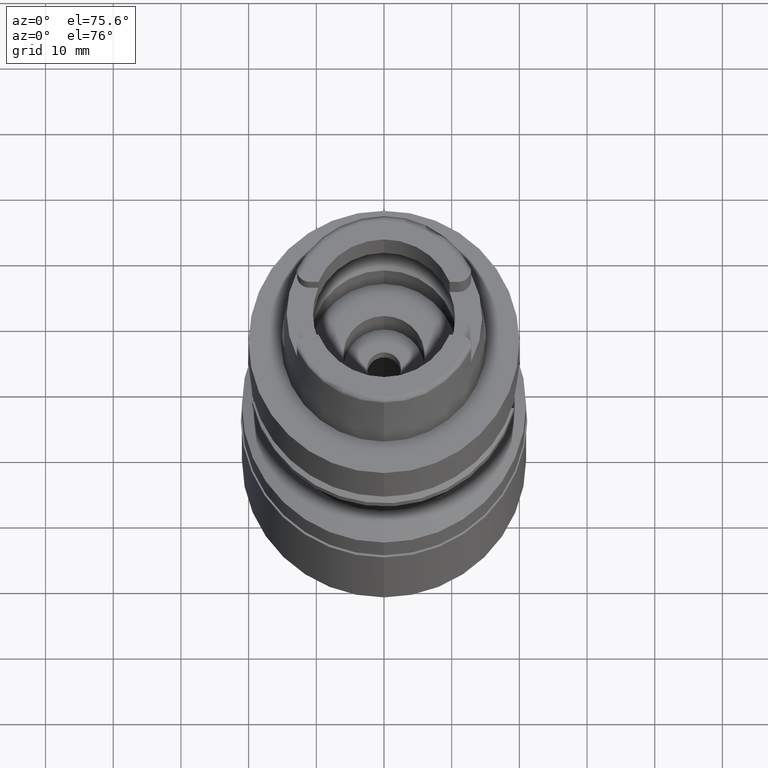
[diagram: clean part render]
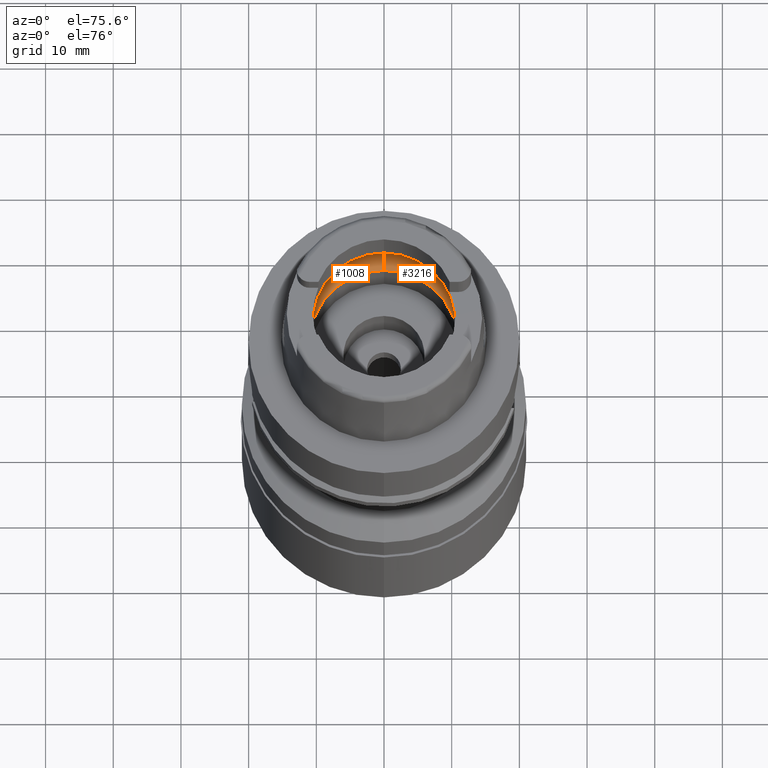
[diagram: same view with one multi-face feature highlighted, each face labeled with its STEP entity id]
A machine part, auxiliary view. The highlighted faces form ONE feature: a constant-radius fillet chain: 2 tangent blend faces with common blend radius 5 mm. The faces share edges in the B-rep.
Their STEP definitions:
[1] entity #1008 (Torus):
#28 = VERTEX_POINT ( 'NONE', #724 ) ;
#136 = CARTESIAN_POINT ( 'NONE',  ( -12.73125791500999959, 0.6899488223915999363, 3.796703560592000315 ) ) ;
#278 = EDGE_CURVE ( 'NONE', #4067, #2841, #2353, .T. ) ;
#290 = EDGE_CURVE ( 'NONE', #4269, #4067, #649, .T. ) ;
#456 = EDGE_CURVE ( 'NONE', #4269, #838, #3293, .T. ) ;
#649 = CIRCLE ( 'NONE', #2503, 10.90000000000000036 ) ;
#653 = CARTESIAN_POINT ( 'NONE',  ( -12.71822638592999866, 0.9055701133754999743, 3.882623362512000131 ) ) ;
#724 = CARTESIAN_POINT ( 'NONE',  ( -12.70998420979999999, -1.009356917307999923, 3.933312163512999504 ) ) ;
#729 = CARTESIAN_POINT ( 'NONE',  ( -12.74455357708000136, -0.3736595957190507744, 3.699999999999999289 ) ) ;
#815 = CIRCLE ( 'NONE', #5384, 12.75000000000000000 ) ;
#838 = VERTEX_POINT ( 'NONE', #1647 ) ;
#894 = DIRECTION ( 'NONE',  ( 1.000000000000000000, 0.0000000000000000000, 0.0000000000000000000 ) ) ;
#1008 = ADVANCED_FACE ( 'NONE', ( #4313 ), #3661, .F. ) ;
#1016 = DIRECTION ( 'NONE',  ( 0.0000000000000000000, 0.0000000000000000000, -1.000000000000000000 ) ) ;
#1234 = ORIENTED_EDGE ( 'NONE', *, *, #3013, .F. ) ;
#1385 = CARTESIAN_POINT ( 'NONE',  ( 0.0000000000000000000, 1.272815980657999902E-14, 3.933312163512999504 ) ) ;
#1387 = CARTESIAN_POINT ( 'NONE',  ( 0.0000000000000000000, 1.272815980657999902E-14, 3.933312163512999504 ) ) ;
#1437 = CARTESIAN_POINT ( 'NONE',  ( -12.74455357708000136, 0.0000000000000000000, 3.700000000000000178 ) ) ;
#1569 = CARTESIAN_POINT ( 'NONE',  ( 0.0000000000000000000, -12.75000000000000000, 3.933312163512999504 ) ) ;
#1647 = CARTESIAN_POINT ( 'NONE',  ( 0.0000000000000000000, 12.75000000000000000, 3.933312163512999504 ) ) ;
#1674 = ORIENTED_EDGE ( 'NONE', *, *, #3110, .F. ) ;
#1709 = AXIS2_PLACEMENT_3D ( 'NONE', #3446, #894, #2289 ) ;
#1805 = B_SPLINE_CURVE_WITH_KNOTS ( 'NONE', 3,
 ( #1437, #3922, #2272, #136, #653, #4003 ),
 .UNSPECIFIED., .F., .F.,
 ( 4, 1, 1, 4 ),
 ( 0.0000000000000000000, 0.3333333333333000081, 0.6666666666667000474, 1.000000000000000000 ),
 .UNSPECIFIED. ) ;
#1872 = DIRECTION ( 'NONE',  ( 0.0000000000000000000, 0.0000000000000000000, 1.000000000000000000 ) ) ;
#2093 = VERTEX_POINT ( 'NONE', #2671 ) ;
#2230 = DIRECTION ( 'NONE',  ( 0.0000000000000000000, 1.000000000000000000, 0.0000000000000000000 ) ) ;
#2246 = DIRECTION ( 'NONE',  ( 0.0000000000000000000, -1.000000000000000000, 0.0000000000000000000 ) ) ;
#2272 = CARTESIAN_POINT ( 'NONE',  ( -12.74221287095999955, 0.3492175661402999731, 3.717717495173999964 ) ) ;
#2289 = DIRECTION ( 'NONE',  ( 0.0000000000000000000, 0.6299999999999791322, -0.7765951326141738997 ) ) ;
#2294 = AXIS2_PLACEMENT_3D ( 'NONE', #3517, #1016, #4855 ) ;
#2353 = CIRCLE ( 'NONE', #5383, 5.000000000000000888 ) ;
#2423 = ORIENTED_EDGE ( 'NONE', *, *, #3039, .F. ) ;
#2503 = AXIS2_PLACEMENT_3D ( 'NONE', #3461, #1872, #2230 ) ;
#2521 = AXIS2_PLACEMENT_3D ( 'NONE', #1387, #4286, #4716 ) ;
#2671 = CARTESIAN_POINT ( 'NONE',  ( -12.70998420979999999, 1.009356917307999923, 3.933312163512999504 ) ) ;
#2841 = VERTEX_POINT ( 'NONE', #1569 ) ;
#2928 = EDGE_LOOP ( 'NONE', ( #1234, #4488, #3777, #4786, #4508, #2423, #1674 ) ) ;
#3013 = EDGE_CURVE ( 'NONE', #2841, #28, #815, .T. ) ;
#3039 = EDGE_CURVE ( 'NONE', #3522, #2093, #1805, .T. ) ;
#3110 = EDGE_CURVE ( 'NONE', #28, #3522, #4103, .T. ) ;
#3293 = CIRCLE ( 'NONE', #1709, 5.000000000000000888 ) ;
#3446 = CARTESIAN_POINT ( 'NONE',  ( 0.0000000000000000000, 7.750000000000000000, 3.933312163512999504 ) ) ;
#3461 = CARTESIAN_POINT ( 'NONE',  ( 0.0000000000000000000, 1.272815980657999902E-14, 0.05033650044221000402 ) ) ;
#3517 = CARTESIAN_POINT ( 'NONE',  ( 0.0000000000000000000, 1.272815980657999902E-14, 3.933312163512999504 ) ) ;
#3522 = VERTEX_POINT ( 'NONE', #3585 ) ;
#3585 = CARTESIAN_POINT ( 'NONE',  ( -12.74455357708000136, 0.0000000000000000000, 3.700000000000000178 ) ) ;
#3661 = TOROIDAL_SURFACE ( 'NONE', #2521, 7.750000000000000000, 5.000000000000000000 ) ;
#3689 = CARTESIAN_POINT ( 'NONE',  ( -12.73303045465333305, -0.7191549055692795234, 3.791579385686877579 ) ) ;
#3777 = ORIENTED_EDGE ( 'NONE', *, *, #290, .F. ) ;
#3907 = CARTESIAN_POINT ( 'NONE',  ( 0.0000000000000000000, -7.750000000000000000, 3.933312163512999504 ) ) ;
#3922 = CARTESIAN_POINT ( 'NONE',  ( -12.74455357708000136, 0.1164895558040000140, 3.700000000000000178 ) ) ;
#4003 = CARTESIAN_POINT ( 'NONE',  ( -12.70998420979999999, 1.009356917307999923, 3.933312163512999504 ) ) ;
#4059 = CARTESIAN_POINT ( 'NONE',  ( -12.70998420979999999, -1.009356917307999923, 3.933312163512999504 ) ) ;
#4067 = VERTEX_POINT ( 'NONE', #4587 ) ;
#4103 = B_SPLINE_CURVE_WITH_KNOTS ( 'NONE', 3,
 ( #4059, #3689, #729, #4492 ),
 .UNSPECIFIED., .F., .F.,
 ( 4, 4 ),
 ( 0.0000000000000000000, 1.000000000000000000 ),
 .UNSPECIFIED. ) ;
#4269 = VERTEX_POINT ( 'NONE', #4549 ) ;
#4286 = DIRECTION ( 'NONE',  ( 0.0000000000000000000, 0.0000000000000000000, -1.000000000000000000 ) ) ;
#4312 = CIRCLE ( 'NONE', #2294, 12.75000000000000533 ) ;
#4313 = FACE_OUTER_BOUND ( 'NONE', #2928, .T. ) ;
#4488 = ORIENTED_EDGE ( 'NONE', *, *, #278, .F. ) ;
#4492 = CARTESIAN_POINT ( 'NONE',  ( -12.74455357708000136, 0.0000000000000000000, 3.700000000000000178 ) ) ;
#4508 = ORIENTED_EDGE ( 'NONE', *, *, #5223, .F. ) ;
#4549 = CARTESIAN_POINT ( 'NONE',  ( 0.0000000000000000000, 10.90000000000000036, 0.05033650044221000402 ) ) ;
#4587 = CARTESIAN_POINT ( 'NONE',  ( 0.0000000000000000000, -10.90000000000000036, 0.05033650044221000402 ) ) ;
#4695 = DIRECTION ( 'NONE',  ( -1.000000000000000000, 0.0000000000000000000, 0.0000000000000000000 ) ) ;
#4716 = DIRECTION ( 'NONE',  ( 0.0000000000000000000, -1.000000000000000000, 0.0000000000000000000 ) ) ;
#4742 = DIRECTION ( 'NONE',  ( 0.0000000000000000000, 0.0000000000000000000, -1.000000000000000000 ) ) ;
#4786 = ORIENTED_EDGE ( 'NONE', *, *, #456, .T. ) ;
#4855 = DIRECTION ( 'NONE',  ( -0.9968615066513395462, 0.07916524841634305087, 0.0000000000000000000 ) ) ;
#5191 = DIRECTION ( 'NONE',  ( 0.0000000000000000000, -0.6299999999999791322, -0.7765951326141738997 ) ) ;
#5223 = EDGE_CURVE ( 'NONE', #2093, #838, #4312, .T. ) ;
#5383 = AXIS2_PLACEMENT_3D ( 'NONE', #3907, #4695, #5191 ) ;
#5384 = AXIS2_PLACEMENT_3D ( 'NONE', #1385, #4742, #2246 ) ;
[2] entity #3216 (Torus):
#48 = B_SPLINE_CURVE_WITH_KNOTS ( 'NONE', 3,
 ( #2661, #2202, #3496, #3878, #1900, #4807 ),
 .UNSPECIFIED., .F., .F.,
 ( 4, 1, 1, 4 ),
 ( 0.0000000000000000000, 0.3333333333333000081, 0.6666666666667000474, 1.000000000000000000 ),
 .UNSPECIFIED. ) ;
#94 = DIRECTION ( 'NONE',  ( 0.9968615066513395462, -0.07916524841634305087, 0.0000000000000000000 ) ) ;
#247 = EDGE_CURVE ( 'NONE', #2381, #4699, #48, .T. ) ;
#278 = EDGE_CURVE ( 'NONE', #4067, #2841, #2353, .T. ) ;
#423 = CARTESIAN_POINT ( 'NONE',  ( 12.73125805479999961, -0.6899454939058999869, 3.796702574238000505 ) ) ;
#456 = EDGE_CURVE ( 'NONE', #4269, #838, #3293, .T. ) ;
#472 = EDGE_CURVE ( 'NONE', #4699, #3006, #1310, .T. ) ;
#838 = VERTEX_POINT ( 'NONE', #1647 ) ;
#839 = CARTESIAN_POINT ( 'NONE',  ( 12.74455357708000136, 0.0000000000000000000, 3.700000000000000178 ) ) ;
#883 = ORIENTED_EDGE ( 'NONE', *, *, #278, .T. ) ;
#894 = DIRECTION ( 'NONE',  ( 1.000000000000000000, 0.0000000000000000000, 0.0000000000000000000 ) ) ;
#926 = CARTESIAN_POINT ( 'NONE',  ( 0.0000000000000000000, 1.272815980657999902E-14, 3.933312163512999504 ) ) ;
#1002 = AXIS2_PLACEMENT_3D ( 'NONE', #926, #2582, #3351 ) ;
#1073 = CARTESIAN_POINT ( 'NONE',  ( 12.74455357708000136, 0.0000000000000000000, 3.700000000000000178 ) ) ;
#1148 = CARTESIAN_POINT ( 'NONE',  ( 0.0000000000000000000, 1.272815980657999902E-14, 3.933312163512999504 ) ) ;
#1226 = DIRECTION ( 'NONE',  ( 0.0000000000000000000, 0.0000000000000000000, -1.000000000000000000 ) ) ;
#1304 = EDGE_CURVE ( 'NONE', #838, #2381, #3586, .T. ) ;
#1310 = B_SPLINE_CURVE_WITH_KNOTS ( 'NONE', 3,
 ( #839, #2529, #5111, #423, #3826, #1733 ),
 .UNSPECIFIED., .F., .F.,
 ( 4, 1, 1, 4 ),
 ( 0.0000000000000000000, 0.3333333333333000081, 0.6666666666667000474, 1.000000000000000000 ),
 .UNSPECIFIED. ) ;
#1335 = CARTESIAN_POINT ( 'NONE',  ( 12.70998420979999999, 1.009356917307000057, 3.933312163512999504 ) ) ;
#1569 = CARTESIAN_POINT ( 'NONE',  ( 0.0000000000000000000, -12.75000000000000000, 3.933312163512999504 ) ) ;
#1647 = CARTESIAN_POINT ( 'NONE',  ( 0.0000000000000000000, 12.75000000000000000, 3.933312163512999504 ) ) ;
#1709 = AXIS2_PLACEMENT_3D ( 'NONE', #3446, #894, #2289 ) ;
#1733 = CARTESIAN_POINT ( 'NONE',  ( 12.70998420979999999, -1.009356917307999923, 3.933312163512999504 ) ) ;
#1804 = EDGE_CURVE ( 'NONE', #3006, #2841, #3402, .T. ) ;
#1900 = CARTESIAN_POINT ( 'NONE',  ( 12.74455357708000136, 0.1164891689111999945, 3.700000000000000178 ) ) ;
#1966 = AXIS2_PLACEMENT_3D ( 'NONE', #2964, #3886, #94 ) ;
#2090 = FACE_OUTER_BOUND ( 'NONE', #5004, .T. ) ;
#2202 = CARTESIAN_POINT ( 'NONE',  ( 12.71822643253000074, 0.9055695265645999914, 3.882623075918000044 ) ) ;
#2260 = ORIENTED_EDGE ( 'NONE', *, *, #2975, .F. ) ;
#2271 = AXIS2_PLACEMENT_3D ( 'NONE', #1148, #1226, #4563 ) ;
#2289 = DIRECTION ( 'NONE',  ( 0.0000000000000000000, 0.6299999999999791322, -0.7765951326141738997 ) ) ;
#2353 = CIRCLE ( 'NONE', #5383, 5.000000000000000888 ) ;
#2381 = VERTEX_POINT ( 'NONE', #1335 ) ;
#2529 = CARTESIAN_POINT ( 'NONE',  ( 12.74455357708000136, -0.1164895137048999885, 3.700000000000000178 ) ) ;
#2582 = DIRECTION ( 'NONE',  ( 0.0000000000000000000, 0.0000000000000000000, -1.000000000000000000 ) ) ;
#2661 = CARTESIAN_POINT ( 'NONE',  ( 12.70998420979999999, 1.009356917307000057, 3.933312163512999504 ) ) ;
#2777 = TOROIDAL_SURFACE ( 'NONE', #1002, 7.750000000000000000, 5.000000000000000000 ) ;
#2841 = VERTEX_POINT ( 'NONE', #1569 ) ;
#2964 = CARTESIAN_POINT ( 'NONE',  ( 0.0000000000000000000, 1.272815980657999902E-14, 3.933312163512999504 ) ) ;
#2975 = EDGE_CURVE ( 'NONE', #4067, #4269, #3126, .T. ) ;
#3006 = VERTEX_POINT ( 'NONE', #4032 ) ;
#3098 = DIRECTION ( 'NONE',  ( 0.0000000000000000000, 0.0000000000000000000, 1.000000000000000000 ) ) ;
#3126 = CIRCLE ( 'NONE', #5042, 10.90000000000000036 ) ;
#3216 = ADVANCED_FACE ( 'NONE', ( #2090 ), #2777, .F. ) ;
#3293 = CIRCLE ( 'NONE', #1709, 5.000000000000000888 ) ;
#3351 = DIRECTION ( 'NONE',  ( 0.0000000000000000000, -1.000000000000000000, 0.0000000000000000000 ) ) ;
#3402 = CIRCLE ( 'NONE', #1966, 12.75000000000000533 ) ;
#3446 = CARTESIAN_POINT ( 'NONE',  ( 0.0000000000000000000, 7.750000000000000000, 3.933312163512999504 ) ) ;
#3474 = ORIENTED_EDGE ( 'NONE', *, *, #472, .F. ) ;
#3496 = CARTESIAN_POINT ( 'NONE',  ( 12.73125798179000157, 0.6899473689442000568, 3.796703095513000115 ) ) ;
#3586 = CIRCLE ( 'NONE', #2271, 12.75000000000000000 ) ;
#3826 = CARTESIAN_POINT ( 'NONE',  ( 12.71822649268999861, -0.9055687691296999686, 3.882622705990999457 ) ) ;
#3878 = CARTESIAN_POINT ( 'NONE',  ( 12.74221288326999968, 0.3492166548812000171, 3.717717399743999618 ) ) ;
#3886 = DIRECTION ( 'NONE',  ( 0.0000000000000000000, 0.0000000000000000000, -1.000000000000000000 ) ) ;
#3907 = CARTESIAN_POINT ( 'NONE',  ( 0.0000000000000000000, -7.750000000000000000, 3.933312163512999504 ) ) ;
#4032 = CARTESIAN_POINT ( 'NONE',  ( 12.70998420979999999, -1.009356917307999923, 3.933312163512999504 ) ) ;
#4067 = VERTEX_POINT ( 'NONE', #4587 ) ;
#4269 = VERTEX_POINT ( 'NONE', #4549 ) ;
#4388 = DIRECTION ( 'NONE',  ( 0.0000000000000000000, -1.000000000000000000, 0.0000000000000000000 ) ) ;
#4549 = CARTESIAN_POINT ( 'NONE',  ( 0.0000000000000000000, 10.90000000000000036, 0.05033650044221000402 ) ) ;
#4563 = DIRECTION ( 'NONE',  ( 0.0000000000000000000, 1.000000000000000000, 0.0000000000000000000 ) ) ;
#4587 = CARTESIAN_POINT ( 'NONE',  ( 0.0000000000000000000, -10.90000000000000036, 0.05033650044221000402 ) ) ;
#4695 = DIRECTION ( 'NONE',  ( -1.000000000000000000, 0.0000000000000000000, 0.0000000000000000000 ) ) ;
#4699 = VERTEX_POINT ( 'NONE', #1073 ) ;
#4750 = ORIENTED_EDGE ( 'NONE', *, *, #1804, .F. ) ;
#4807 = CARTESIAN_POINT ( 'NONE',  ( 12.74455357708000136, 0.0000000000000000000, 3.700000000000000178 ) ) ;
#4824 = CARTESIAN_POINT ( 'NONE',  ( 0.0000000000000000000, 1.272815980657999902E-14, 0.05033650044221000402 ) ) ;
#4849 = ORIENTED_EDGE ( 'NONE', *, *, #1304, .F. ) ;
#4916 = ORIENTED_EDGE ( 'NONE', *, *, #247, .F. ) ;
#5004 = EDGE_LOOP ( 'NONE', ( #4916, #4849, #5267, #2260, #883, #4750, #3474 ) ) ;
#5042 = AXIS2_PLACEMENT_3D ( 'NONE', #4824, #3098, #4388 ) ;
#5111 = CARTESIAN_POINT ( 'NONE',  ( 12.74221285518999913, -0.3492174051849999961, 3.717717604113999652 ) ) ;
#5191 = DIRECTION ( 'NONE',  ( 0.0000000000000000000, -0.6299999999999791322, -0.7765951326141738997 ) ) ;
#5267 = ORIENTED_EDGE ( 'NONE', *, *, #456, .F. ) ;
#5383 = AXIS2_PLACEMENT_3D ( 'NONE', #3907, #4695, #5191 ) ;